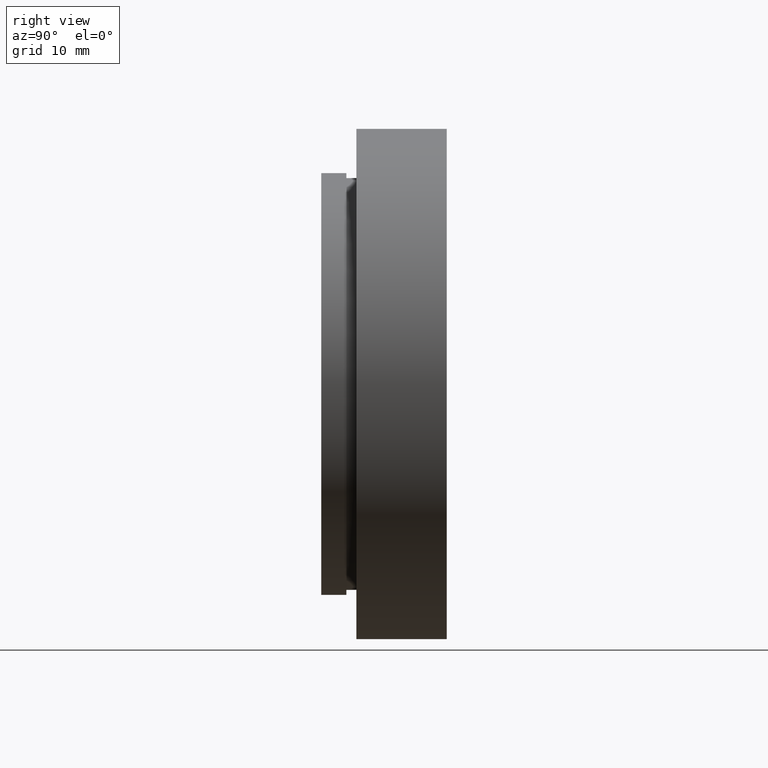
[diagram: clean part render]
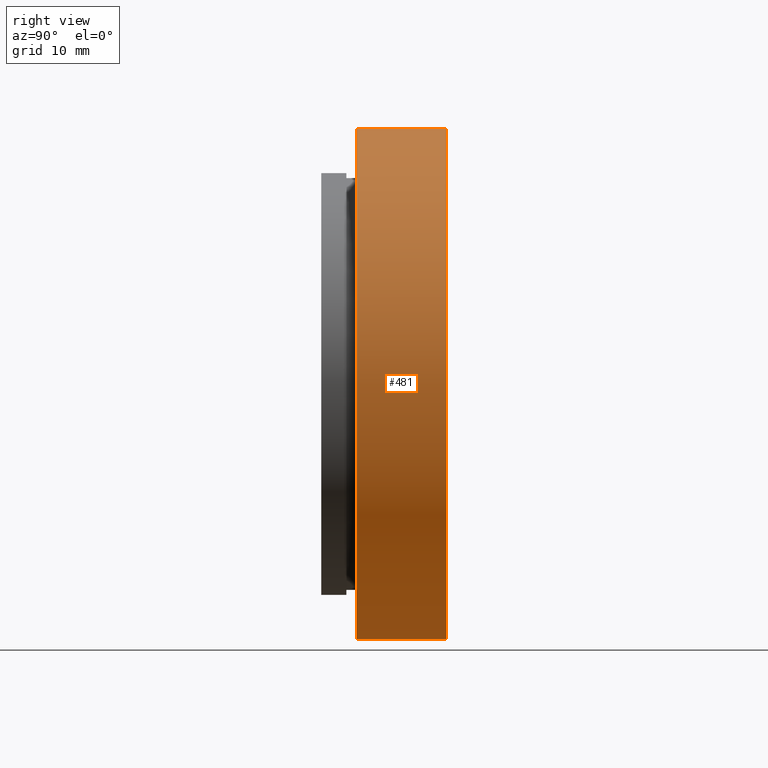
[diagram: same view with one face highlighted and labeled with its STEP entity id]
A machine part, right view. The second image highlights one B-rep face of the part: STEP entity #481.
In plain terms, the highlighted cylindrical surface (partial cylindrical patch) has radius 25.4 mm, axis along (-0, -1, -0).
Its self-contained STEP definition (entity closure, byte-faithful):
#15 = AXIS2_PLACEMENT_3D ( 'NONE', #384, #493, #554 ) ;
#19 = VERTEX_POINT ( 'NONE', #704 ) ;
#21 = EDGE_CURVE ( 'NONE', #445, #163, #298, .T. ) ;
#30 = AXIS2_PLACEMENT_3D ( 'NONE', #586, #474, #330 ) ;
#59 = CARTESIAN_POINT ( 'NONE',  ( 0.0000000000000000000, 0.0000000000000000000, 0.0000000000000000000 ) ) ;
#94 = LINE ( 'NONE', #105, #678 ) ;
#105 = CARTESIAN_POINT ( 'NONE',  ( 0.0000000000000000000, 0.0000000000000000000, -25.39999999999999900 ) ) ;
#108 = VECTOR ( 'NONE', #522, 1000.000000000000000 ) ;
#139 = LINE ( 'NONE', #462, #108 ) ;
#146 = ORIENTED_EDGE ( 'NONE', *, *, #602, .T. ) ;
#163 = VERTEX_POINT ( 'NONE', #435 ) ;
#175 = CIRCLE ( 'NONE', #15, 25.39999999999999900 ) ;
#176 = EDGE_CURVE ( 'NONE', #19, #540, #175, .T. ) ;
#226 = DIRECTION ( 'NONE',  ( -0.0000000000000000000, -1.000000000000000000, -0.0000000000000000000 ) ) ;
#227 = ORIENTED_EDGE ( 'NONE', *, *, #21, .F. ) ;
#274 = EDGE_LOOP ( 'NONE', ( #690, #146, #227, #287 ) ) ;
#287 = ORIENTED_EDGE ( 'NONE', *, *, #364, .F. ) ;
#298 = CIRCLE ( 'NONE', #30, 25.39999999999999900 ) ;
#330 = DIRECTION ( 'NONE',  ( 0.0000000000000000000, 0.0000000000000000000, -1.000000000000000000 ) ) ;
#339 = DIRECTION ( 'NONE',  ( -0.0000000000000000000, -1.000000000000000000, -0.0000000000000000000 ) ) ;
#364 = EDGE_CURVE ( 'NONE', #19, #445, #94, .T. ) ;
#384 = CARTESIAN_POINT ( 'NONE',  ( 0.0000000000000000000, 12.50000000000000000, 0.0000000000000000000 ) ) ;
#421 = FACE_OUTER_BOUND ( 'NONE', #274, .T. ) ;
#435 = CARTESIAN_POINT ( 'NONE',  ( 3.110602869834276900E-015, 3.500000000000000000, 25.39999999999999900 ) ) ;
#445 = VERTEX_POINT ( 'NONE', #680 ) ;
#462 = CARTESIAN_POINT ( 'NONE',  ( 3.110602869834276900E-015, 0.0000000000000000000, 25.39999999999999900 ) ) ;
#474 = DIRECTION ( 'NONE',  ( -0.0000000000000000000, -1.000000000000000000, -0.0000000000000000000 ) ) ;
#481 = ADVANCED_FACE ( 'NONE', ( #421 ), #634, .T. ) ;
#493 = DIRECTION ( 'NONE',  ( -0.0000000000000000000, -1.000000000000000000, -0.0000000000000000000 ) ) ;
#522 = DIRECTION ( 'NONE',  ( -0.0000000000000000000, -1.000000000000000000, -0.0000000000000000000 ) ) ;
#540 = VERTEX_POINT ( 'NONE', #567 ) ;
#554 = DIRECTION ( 'NONE',  ( 0.0000000000000000000, 0.0000000000000000000, -1.000000000000000000 ) ) ;
#567 = CARTESIAN_POINT ( 'NONE',  ( 3.110602869834276900E-015, 12.50000000000000000, 25.39999999999999900 ) ) ;
#586 = CARTESIAN_POINT ( 'NONE',  ( 0.0000000000000000000, 3.500000000000000000, 0.0000000000000000000 ) ) ;
#602 = EDGE_CURVE ( 'NONE', #540, #163, #139, .T. ) ;
#634 = CYLINDRICAL_SURFACE ( 'NONE', #703, 25.39999999999999900 ) ;
#678 = VECTOR ( 'NONE', #226, 1000.000000000000000 ) ;
#680 = CARTESIAN_POINT ( 'NONE',  ( 0.0000000000000000000, 3.500000000000000000, -25.39999999999999900 ) ) ;
#683 = DIRECTION ( 'NONE',  ( 0.0000000000000000000, 0.0000000000000000000, -1.000000000000000000 ) ) ;
#690 = ORIENTED_EDGE ( 'NONE', *, *, #176, .T. ) ;
#703 = AXIS2_PLACEMENT_3D ( 'NONE', #59, #339, #683 ) ;
#704 = CARTESIAN_POINT ( 'NONE',  ( 0.0000000000000000000, 12.50000000000000000, -25.39999999999999900 ) ) ;